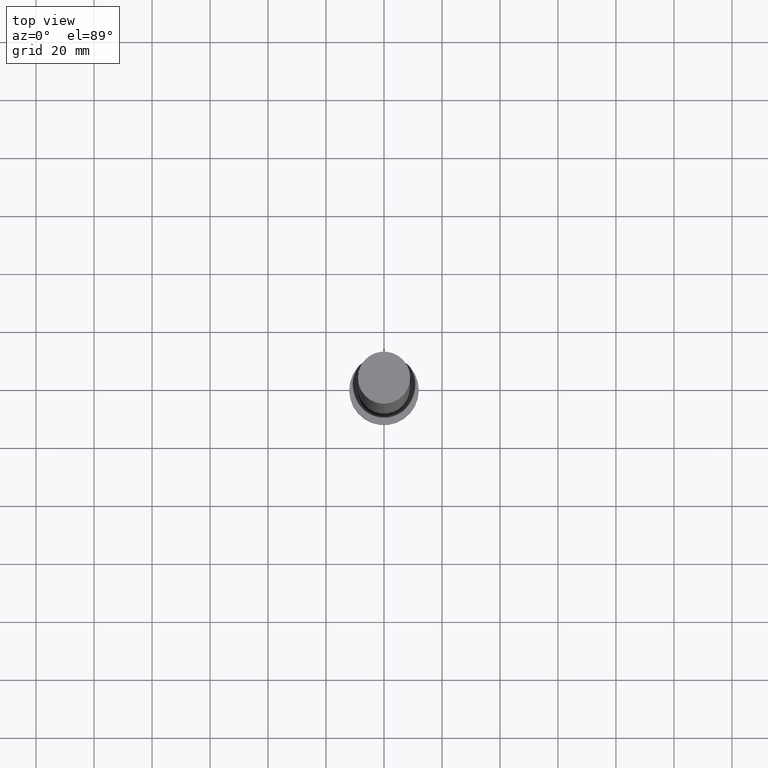
[diagram: clean part render]
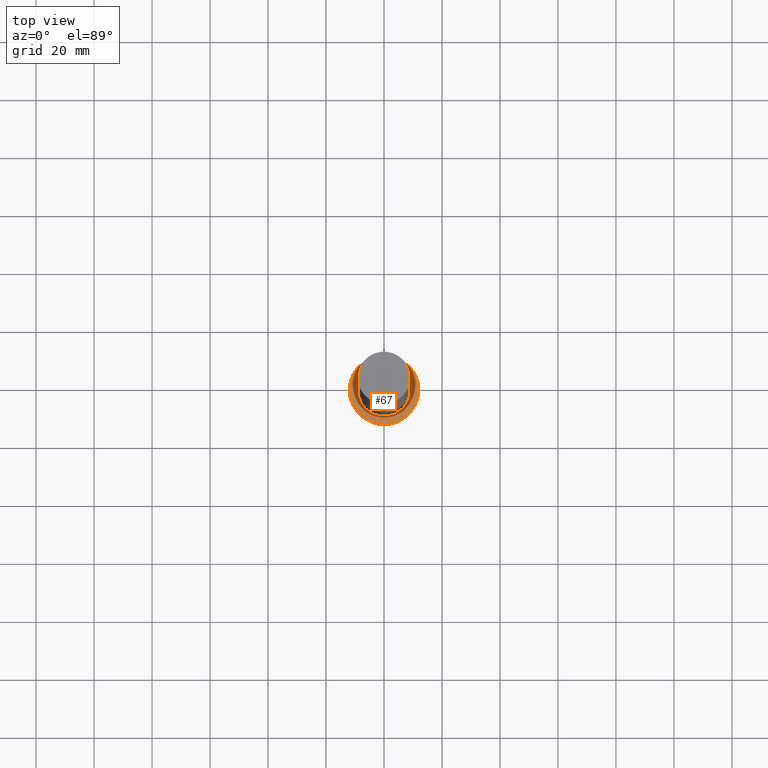
[diagram: same view with one face highlighted and labeled with its STEP entity id]
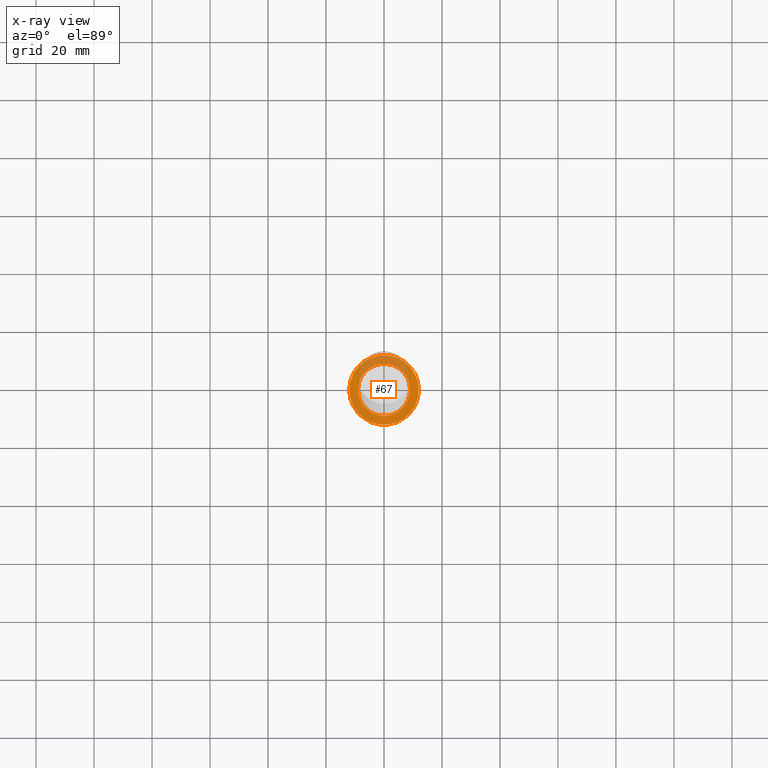
[diagram: x-ray of the same camera — body ghosted, the highlighted face saturated]
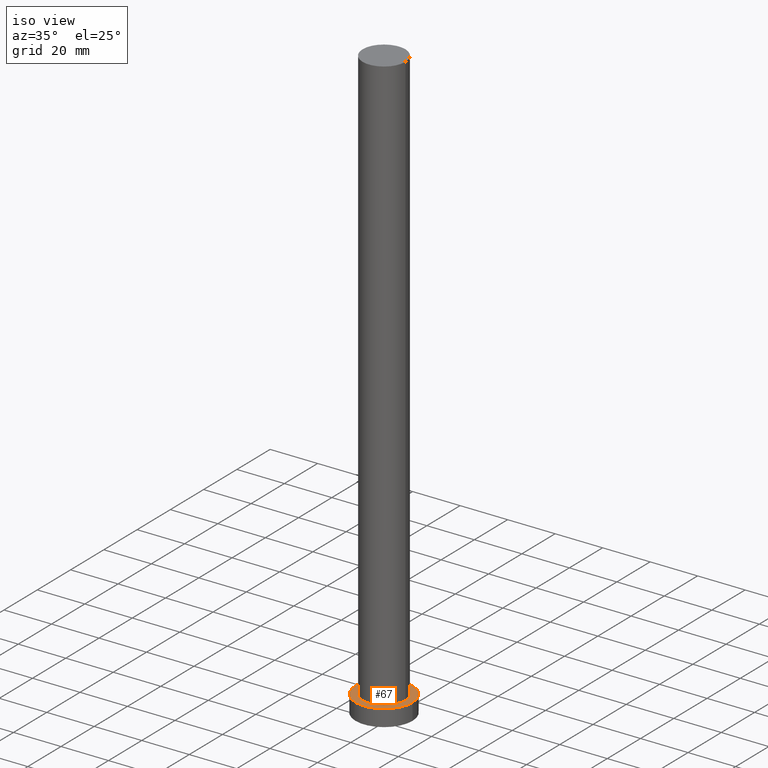
[diagram: same view with one face highlighted and labeled with its STEP entity id]
A machine part, top view. The second image highlights one B-rep face of the part: STEP entity #67.
The next image is the same camera in x-ray: the body ghosted, the highlighted face saturated — about 32% of this face is hidden behind the body in this view.
A second angle (iso view) of the same face is appended — the face is thin or edge-on in the first view.
In plain terms, the highlighted planar face has unit normal (0, 0, 1).
Its self-contained STEP definition (entity closure, byte-faithful):
#2 = CIRCLE ( 'NONE', #32, 9.000000000000001776 ) ;
#6 = CARTESIAN_POINT ( 'NONE',  ( -12.00000000000000178, 0.000000000000000000, 7.000000000000000000 ) ) ;
#7 = CIRCLE ( 'NONE', #28, 9.000000000000001776 ) ;
#16 = ORIENTED_EDGE ( 'NONE', *, *, #214, .T. ) ;
#19 = EDGE_LOOP ( 'NONE', ( #216, #199 ) ) ;
#21 = CARTESIAN_POINT ( 'NONE',  ( 0.000000000000000000, 0.000000000000000000, 7.000000000000000000 ) ) ;
#23 = EDGE_CURVE ( 'NONE', #137, #114, #89, .T. ) ;
#28 = AXIS2_PLACEMENT_3D ( 'NONE', #242, #62, #142 ) ;
#32 = AXIS2_PLACEMENT_3D ( 'NONE', #70, #233, #117 ) ;
#36 = DIRECTION ( 'NONE',  ( 1.000000000000000000, 0.000000000000000000, 0.000000000000000000 ) ) ;
#41 = CARTESIAN_POINT ( 'NONE',  ( -9.000000000000001776, 0.000000000000000000, 7.000000000000000000 ) ) ;
#45 = AXIS2_PLACEMENT_3D ( 'NONE', #254, #119, #223 ) ;
#48 = EDGE_CURVE ( 'NONE', #154, #210, #2, .T. ) ;
#62 = DIRECTION ( 'NONE',  ( 0.000000000000000000, 0.000000000000000000, 1.000000000000000000 ) ) ;
#67 = ADVANCED_FACE ( 'NONE', ( #95, #173 ), #171, .T. ) ;
#69 = CARTESIAN_POINT ( 'NONE',  ( 0.000000000000000000, 0.000000000000000000, 7.000000000000000000 ) ) ;
#70 = CARTESIAN_POINT ( 'NONE',  ( 0.000000000000000000, 0.000000000000000000, 7.000000000000000000 ) ) ;
#76 = DIRECTION ( 'NONE',  ( 0.000000000000000000, 0.000000000000000000, 1.000000000000000000 ) ) ;
#82 = DIRECTION ( 'NONE',  ( 1.000000000000000000, 0.000000000000000000, 0.000000000000000000 ) ) ;
#89 = CIRCLE ( 'NONE', #172, 12.00000000000000178 ) ;
#95 = FACE_BOUND ( 'NONE', #19, .T. ) ;
#105 = AXIS2_PLACEMENT_3D ( 'NONE', #21, #76, #82 ) ;
#114 = VERTEX_POINT ( 'NONE', #140 ) ;
#117 = DIRECTION ( 'NONE',  ( 1.000000000000000000, 0.000000000000000000, 0.000000000000000000 ) ) ;
#119 = DIRECTION ( 'NONE',  ( 0.000000000000000000, 0.000000000000000000, 1.000000000000000000 ) ) ;
#131 = EDGE_LOOP ( 'NONE', ( #134, #16 ) ) ;
#134 = ORIENTED_EDGE ( 'NONE', *, *, #23, .T. ) ;
#137 = VERTEX_POINT ( 'NONE', #6 ) ;
#140 = CARTESIAN_POINT ( 'NONE',  ( 12.00000000000000178, 1.469576158976824144E-15, 7.000000000000000000 ) ) ;
#142 = DIRECTION ( 'NONE',  ( 1.000000000000000000, 0.000000000000000000, 0.000000000000000000 ) ) ;
#152 = DIRECTION ( 'NONE',  ( 0.000000000000000000, 0.000000000000000000, 1.000000000000000000 ) ) ;
#154 = VERTEX_POINT ( 'NONE', #196 ) ;
#171 = PLANE ( 'NONE',  #45 ) ;
#172 = AXIS2_PLACEMENT_3D ( 'NONE', #69, #152, #36 ) ;
#173 = FACE_OUTER_BOUND ( 'NONE', #131, .T. ) ;
#193 = EDGE_CURVE ( 'NONE', #210, #154, #7, .T. ) ;
#196 = CARTESIAN_POINT ( 'NONE',  ( 9.000000000000001776, 1.102182119232617911E-15, 7.000000000000000000 ) ) ;
#199 = ORIENTED_EDGE ( 'NONE', *, *, #48, .F. ) ;
#210 = VERTEX_POINT ( 'NONE', #41 ) ;
#214 = EDGE_CURVE ( 'NONE', #114, #137, #249, .T. ) ;
#216 = ORIENTED_EDGE ( 'NONE', *, *, #193, .F. ) ;
#223 = DIRECTION ( 'NONE',  ( 1.000000000000000000, 0.000000000000000000, -0.000000000000000000 ) ) ;
#233 = DIRECTION ( 'NONE',  ( 0.000000000000000000, 0.000000000000000000, 1.000000000000000000 ) ) ;
#242 = CARTESIAN_POINT ( 'NONE',  ( 0.000000000000000000, 0.000000000000000000, 7.000000000000000000 ) ) ;
#249 = CIRCLE ( 'NONE', #105, 12.00000000000000178 ) ;
#254 = CARTESIAN_POINT ( 'NONE',  ( 0.000000000000000000, 0.000000000000000000, 7.000000000000000000 ) ) ;